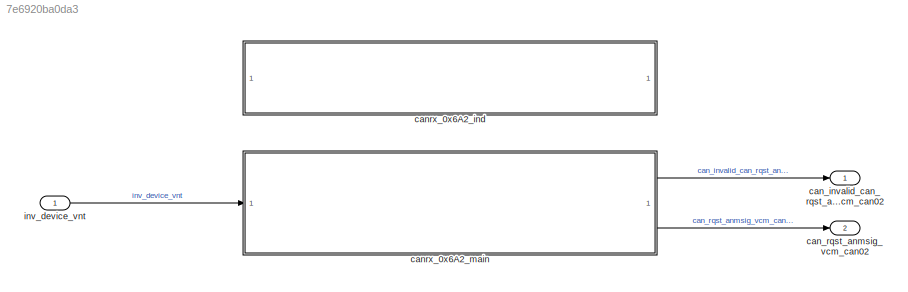
MODEL slx_7e6920ba0da3
KIND model
CONFIG AbsTol = auto
CONFIG EnableMultiTasking = off
CONFIG FixedStep = auto
CONFIG MaxStep = auto
CONFIG MinStep = auto
CONFIG RelTol = 1e-3
CONFIG SampleTimeConstraint = Unconstrained
CONFIG SolverName = VariableStepAuto
CONFIG StartTime = 0.0
CONFIG StopTime = 10.0
BLOCK [Outport] can_invalid_can_rqst_anmsig_vcm_can02
BLOCK [Outport] can_rqst_anmsig_vcm_can02
  Port = 2
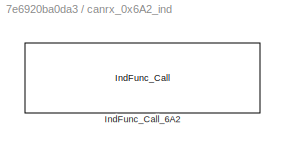
BLOCK [SubSystem] canrx_0x6A2_ind
BLOCK [Reference] canrx_0x6A2_ind/IndFunc_Call_6A2  REF=user_lib/IndFunc_Call
  SourceBlock = user_lib/IndFunc_Call
  SourceProductName = User Defined for IFLayer
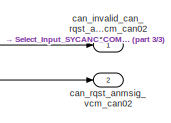
[diagram: canrx_0x6A2_main - part 1/3, right side, full height]
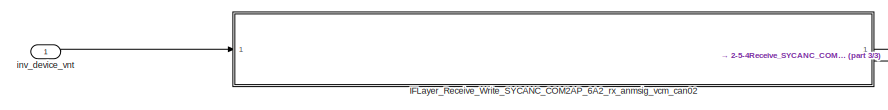
[diagram: canrx_0x6A2_main - part 2/3, middle left region]
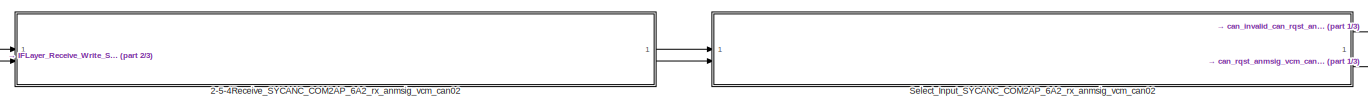
[diagram: canrx_0x6A2_main - part 3/3, central region]
BLOCK [SubSystem] canrx_0x6A2_main
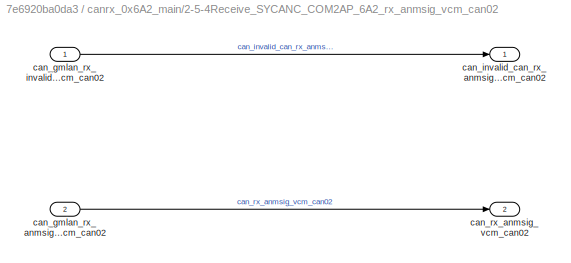
BLOCK [SubSystem] canrx_0x6A2_main/2-5-4Receive_SYCANC_COM2AP_6A2_rx_anmsig_vcm_can02
  RTWSystemCode = Nonreusable function
  TreatAsAtomicUnit = on
BLOCK [Inport] canrx_0x6A2_main/2-5-4Receive_SYCANC_COM2AP_6A2_rx_anmsig_vcm_can02/can_gmlan_rx_anmsig_vcm_can02
  Port = 2
BLOCK [Inport] canrx_0x6A2_main/2-5-4Receive_SYCANC_COM2AP_6A2_rx_anmsig_vcm_can02/can_gmlan_rx_invalid_anmsig_vcm_can02
BLOCK [Outport] canrx_0x6A2_main/2-5-4Receive_SYCANC_COM2AP_6A2_rx_anmsig_vcm_can02/can_invalid_can_rx_anmsig_vcm_can02
BLOCK [Outport] canrx_0x6A2_main/2-5-4Receive_SYCANC_COM2AP_6A2_rx_anmsig_vcm_can02/can_rx_anmsig_vcm_can02
  Port = 2
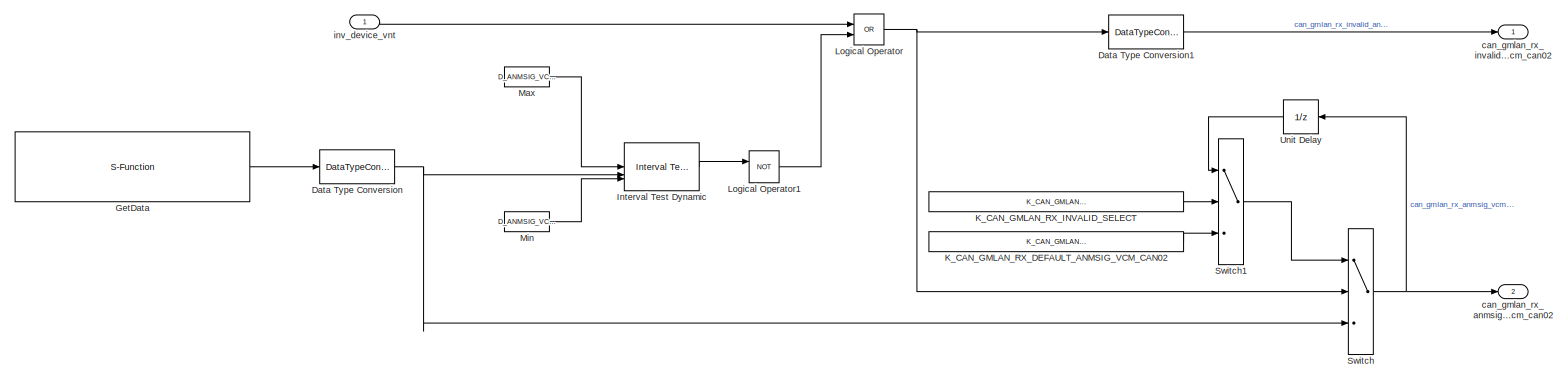
[diagram: canrx_0x6A2_main/IFLayer_Receive_Write_SYCANC_COM2AP_6A2_rx_anmsig_vcm_can02 - part 1/1, most of the canvas]
BLOCK [SubSystem] canrx_0x6A2_main/IFLayer_Receive_Write_SYCANC_COM2AP_6A2_rx_anmsig_vcm_can02
  RTWSystemCode = Nonreusable function
  TreatAsAtomicUnit = on
BLOCK [DataTypeConversion] canrx_0x6A2_main/IFLayer_Receive_Write_SYCANC_COM2AP_6A2_rx_anmsig_vcm_can02/Data Type Conversion
  ConvertRealWorld = Stored Integer (SI)
  OutDataTypeStr = UW
  RndMeth = Floor
  SaturateOnIntegerOverflow = off
BLOCK [DataTypeConversion] canrx_0x6A2_main/IFLayer_Receive_Write_SYCANC_COM2AP_6A2_rx_anmsig_vcm_can02/Data Type Conversion1
  ConvertRealWorld = Stored Integer (SI)
  RndMeth = Floor
  SaturateOnIntegerOverflow = off
BLOCK [S-Function] canrx_0x6A2_main/IFLayer_Receive_Write_SYCANC_COM2AP_6A2_rx_anmsig_vcm_can02/GetData
  EnableBusSupport = off
  FunctionName = GetData
  Parameters = interface,signalType
  SFcnIsStateOwnerBlock = off
  SFunctionDeploymentMode = off
BLOCK [Reference] canrx_0x6A2_main/IFLayer_Receive_Write_SYCANC_COM2AP_6A2_rx_anmsig_vcm_can02/Interval Test Dynamic  REF=simulink/Logic and Bit
Operations/Interval Test
Dynamic
  SourceBlock = simulink/Logic and Bit\nOperations/Interval Test\nDynamic
  SourceType = Interval Test Dynamic
BLOCK [Constant] canrx_0x6A2_main/IFLayer_Receive_Write_SYCANC_COM2AP_6A2_rx_anmsig_vcm_can02/K_CAN_GMLAN_RX_DEFAULT_ANMSIG_VCM_CAN02
  OutDataTypeStr = Inherit: Inherit via back propagation
  Value = K_CAN_GMLAN_RX_DEFAULT_ANMSIG_VCM_CAN02
BLOCK [Constant] canrx_0x6A2_main/IFLayer_Receive_Write_SYCANC_COM2AP_6A2_rx_anmsig_vcm_can02/K_CAN_GMLAN_RX_INVALID_SELECT
  OutDataTypeStr = Inherit: Inherit via back propagation
  Value = K_CAN_GMLAN_RX_INVALID_SELECT
BLOCK [Logic] canrx_0x6A2_main/IFLayer_Receive_Write_SYCANC_COM2AP_6A2_rx_anmsig_vcm_can02/Logical Operator
  AllPortsSameDT = off
  Operator = OR
  OutDataTypeStr = boolean
BLOCK [Logic] canrx_0x6A2_main/IFLayer_Receive_Write_SYCANC_COM2AP_6A2_rx_anmsig_vcm_can02/Logical Operator1
  AllPortsSameDT = off
  Operator = NOT
  OutDataTypeStr = boolean
BLOCK [Constant] canrx_0x6A2_main/IFLayer_Receive_Write_SYCANC_COM2AP_6A2_rx_anmsig_vcm_can02/Max
  OutDataTypeStr = Inherit: Inherit via back propagation
  Value = D_ANMSIG_VCM_CAN02_MAX
BLOCK [Constant] canrx_0x6A2_main/IFLayer_Receive_Write_SYCANC_COM2AP_6A2_rx_anmsig_vcm_can02/Min
  OutDataTypeStr = Inherit: Inherit via back propagation
  Value = D_ANMSIG_VCM_CAN02_MIN
BLOCK [Switch] canrx_0x6A2_main/IFLayer_Receive_Write_SYCANC_COM2AP_6A2_rx_anmsig_vcm_can02/Switch
  Criteria = u2 > Threshold
  InputSameDT = off
  SaturateOnIntegerOverflow = off
BLOCK [Switch] canrx_0x6A2_main/IFLayer_Receive_Write_SYCANC_COM2AP_6A2_rx_anmsig_vcm_can02/Switch1
  Criteria = u2 > Threshold
  InputSameDT = off
  SaturateOnIntegerOverflow = off
BLOCK [UnitDelay] canrx_0x6A2_main/IFLayer_Receive_Write_SYCANC_COM2AP_6A2_rx_anmsig_vcm_can02/Unit Delay
  HasFrameUpgradeWarning = on
  NameLocation = top
  SampleTime = -1
BLOCK [Outport] canrx_0x6A2_main/IFLayer_Receive_Write_SYCANC_COM2AP_6A2_rx_anmsig_vcm_can02/can_gmlan_rx_anmsig_vcm_can02
  Port = 2
BLOCK [Outport] canrx_0x6A2_main/IFLayer_Receive_Write_SYCANC_COM2AP_6A2_rx_anmsig_vcm_can02/can_gmlan_rx_invalid_anmsig_vcm_can02
BLOCK [Inport] canrx_0x6A2_main/IFLayer_Receive_Write_SYCANC_COM2AP_6A2_rx_anmsig_vcm_can02/inv_device_vnt
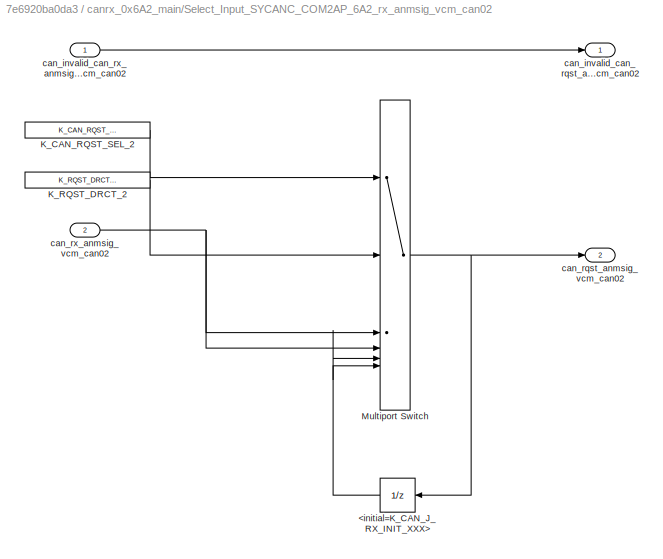
BLOCK [SubSystem] canrx_0x6A2_main/Select_Input_SYCANC_COM2AP_6A2_rx_anmsig_vcm_can02
  RTWSystemCode = Nonreusable function
  TreatAsAtomicUnit = on
BLOCK [UnitDelay] canrx_0x6A2_main/Select_Input_SYCANC_COM2AP_6A2_rx_anmsig_vcm_can02/<initial=K_CAN_J_RX_INIT_XXX>
  HasFrameUpgradeWarning = on
  SampleTime = -1
BLOCK [Constant] canrx_0x6A2_main/Select_Input_SYCANC_COM2AP_6A2_rx_anmsig_vcm_can02/K_CAN_RQST_SEL_2
  Value = K_CAN_RQST_SEL_2
BLOCK [Constant] canrx_0x6A2_main/Select_Input_SYCANC_COM2AP_6A2_rx_anmsig_vcm_can02/K_RQST_DRCT_2
  Value = K_RQST_DRCT_2
BLOCK [MultiPortSwitch] canrx_0x6A2_main/Select_Input_SYCANC_COM2AP_6A2_rx_anmsig_vcm_can02/Multiport Switch
  DataPortOrder = Zero-based contiguous
  InputSameDT = off
  Inputs = 5
  SaturateOnIntegerOverflow = off
  zeroidx = on
BLOCK [Outport] canrx_0x6A2_main/Select_Input_SYCANC_COM2AP_6A2_rx_anmsig_vcm_can02/can_invalid_can_rqst_anmsig_vcm_can02
BLOCK [Inport] canrx_0x6A2_main/Select_Input_SYCANC_COM2AP_6A2_rx_anmsig_vcm_can02/can_invalid_can_rx_anmsig_vcm_can02
BLOCK [Outport] canrx_0x6A2_main/Select_Input_SYCANC_COM2AP_6A2_rx_anmsig_vcm_can02/can_rqst_anmsig_vcm_can02
  Port = 2
BLOCK [Inport] canrx_0x6A2_main/Select_Input_SYCANC_COM2AP_6A2_rx_anmsig_vcm_can02/can_rx_anmsig_vcm_can02
  Port = 2
BLOCK [Outport] canrx_0x6A2_main/can_invalid_can_rqst_anmsig_vcm_can02
BLOCK [Outport] canrx_0x6A2_main/can_rqst_anmsig_vcm_can02
  Port = 2
BLOCK [Inport] canrx_0x6A2_main/inv_device_vnt
BLOCK [Inport] inv_device_vnt
LINE canrx_0x6A2_main/2-5-4Receive_SYCANC_COM2AP_6A2_rx_anmsig_vcm_can02/can_gmlan_rx_anmsig_vcm_can02:1 -> canrx_0x6A2_main/2-5-4Receive_SYCANC_COM2AP_6A2_rx_anmsig_vcm_can02/can_rx_anmsig_vcm_can02:1
LINE canrx_0x6A2_main/2-5-4Receive_SYCANC_COM2AP_6A2_rx_anmsig_vcm_can02/can_gmlan_rx_invalid_anmsig_vcm_can02:1 -> canrx_0x6A2_main/2-5-4Receive_SYCANC_COM2AP_6A2_rx_anmsig_vcm_can02/can_invalid_can_rx_anmsig_vcm_can02:1
LINE canrx_0x6A2_main/2-5-4Receive_SYCANC_COM2AP_6A2_rx_anmsig_vcm_can02:1 -> canrx_0x6A2_main/Select_Input_SYCANC_COM2AP_6A2_rx_anmsig_vcm_can02:1
LINE canrx_0x6A2_main/2-5-4Receive_SYCANC_COM2AP_6A2_rx_anmsig_vcm_can02:2 -> canrx_0x6A2_main/Select_Input_SYCANC_COM2AP_6A2_rx_anmsig_vcm_can02:2
LINE canrx_0x6A2_main/IFLayer_Receive_Write_SYCANC_COM2AP_6A2_rx_anmsig_vcm_can02/Data Type Conversion1:1 -> canrx_0x6A2_main/IFLayer_Receive_Write_SYCANC_COM2AP_6A2_rx_anmsig_vcm_can02/can_gmlan_rx_invalid_anmsig_vcm_can02:1
NET canrx_0x6A2_main/IFLayer_Receive_Write_SYCANC_COM2AP_6A2_rx_anmsig_vcm_can02/Data Type Conversion:1 -> canrx_0x6A2_main/IFLayer_Receive_Write_SYCANC_COM2AP_6A2_rx_anmsig_vcm_can02/Interval Test Dynamic:2, canrx_0x6A2_main/IFLayer_Receive_Write_SYCANC_COM2AP_6A2_rx_anmsig_vcm_can02/Switch:3
LINE canrx_0x6A2_main/IFLayer_Receive_Write_SYCANC_COM2AP_6A2_rx_anmsig_vcm_can02/GetData:1 -> canrx_0x6A2_main/IFLayer_Receive_Write_SYCANC_COM2AP_6A2_rx_anmsig_vcm_can02/Data Type Conversion:1
LINE canrx_0x6A2_main/IFLayer_Receive_Write_SYCANC_COM2AP_6A2_rx_anmsig_vcm_can02/Interval Test Dynamic:1 -> canrx_0x6A2_main/IFLayer_Receive_Write_SYCANC_COM2AP_6A2_rx_anmsig_vcm_can02/Logical Operator1:1
LINE canrx_0x6A2_main/IFLayer_Receive_Write_SYCANC_COM2AP_6A2_rx_anmsig_vcm_can02/K_CAN_GMLAN_RX_DEFAULT_ANMSIG_VCM_CAN02:1 -> canrx_0x6A2_main/IFLayer_Receive_Write_SYCANC_COM2AP_6A2_rx_anmsig_vcm_can02/Switch1:3
LINE canrx_0x6A2_main/IFLayer_Receive_Write_SYCANC_COM2AP_6A2_rx_anmsig_vcm_can02/K_CAN_GMLAN_RX_INVALID_SELECT:1 -> canrx_0x6A2_main/IFLayer_Receive_Write_SYCANC_COM2AP_6A2_rx_anmsig_vcm_can02/Switch1:2
LINE canrx_0x6A2_main/IFLayer_Receive_Write_SYCANC_COM2AP_6A2_rx_anmsig_vcm_can02/Logical Operator1:1 -> canrx_0x6A2_main/IFLayer_Receive_Write_SYCANC_COM2AP_6A2_rx_anmsig_vcm_can02/Logical Operator:2
NET canrx_0x6A2_main/IFLayer_Receive_Write_SYCANC_COM2AP_6A2_rx_anmsig_vcm_can02/Logical Operator:1 -> canrx_0x6A2_main/IFLayer_Receive_Write_SYCANC_COM2AP_6A2_rx_anmsig_vcm_can02/Data Type Conversion1:1, canrx_0x6A2_main/IFLayer_Receive_Write_SYCANC_COM2AP_6A2_rx_anmsig_vcm_can02/Switch:2
LINE canrx_0x6A2_main/IFLayer_Receive_Write_SYCANC_COM2AP_6A2_rx_anmsig_vcm_can02/Max:1 -> canrx_0x6A2_main/IFLayer_Receive_Write_SYCANC_COM2AP_6A2_rx_anmsig_vcm_can02/Interval Test Dynamic:1
LINE canrx_0x6A2_main/IFLayer_Receive_Write_SYCANC_COM2AP_6A2_rx_anmsig_vcm_can02/Min:1 -> canrx_0x6A2_main/IFLayer_Receive_Write_SYCANC_COM2AP_6A2_rx_anmsig_vcm_can02/Interval Test Dynamic:3
LINE canrx_0x6A2_main/IFLayer_Receive_Write_SYCANC_COM2AP_6A2_rx_anmsig_vcm_can02/Switch1:1 -> canrx_0x6A2_main/IFLayer_Receive_Write_SYCANC_COM2AP_6A2_rx_anmsig_vcm_can02/Switch:1
NET canrx_0x6A2_main/IFLayer_Receive_Write_SYCANC_COM2AP_6A2_rx_anmsig_vcm_can02/Switch:1 -> canrx_0x6A2_main/IFLayer_Receive_Write_SYCANC_COM2AP_6A2_rx_anmsig_vcm_can02/Unit Delay:1, canrx_0x6A2_main/IFLayer_Receive_Write_SYCANC_COM2AP_6A2_rx_anmsig_vcm_can02/can_gmlan_rx_anmsig_vcm_can02:1
LINE canrx_0x6A2_main/IFLayer_Receive_Write_SYCANC_COM2AP_6A2_rx_anmsig_vcm_can02/Unit Delay:1 -> canrx_0x6A2_main/IFLayer_Receive_Write_SYCANC_COM2AP_6A2_rx_anmsig_vcm_can02/Switch1:1
LINE canrx_0x6A2_main/IFLayer_Receive_Write_SYCANC_COM2AP_6A2_rx_anmsig_vcm_can02/inv_device_vnt:1 -> canrx_0x6A2_main/IFLayer_Receive_Write_SYCANC_COM2AP_6A2_rx_anmsig_vcm_can02/Logical Operator:1
LINE canrx_0x6A2_main/IFLayer_Receive_Write_SYCANC_COM2AP_6A2_rx_anmsig_vcm_can02:1 -> canrx_0x6A2_main/2-5-4Receive_SYCANC_COM2AP_6A2_rx_anmsig_vcm_can02:1
LINE canrx_0x6A2_main/IFLayer_Receive_Write_SYCANC_COM2AP_6A2_rx_anmsig_vcm_can02:2 -> canrx_0x6A2_main/2-5-4Receive_SYCANC_COM2AP_6A2_rx_anmsig_vcm_can02:2
NET canrx_0x6A2_main/Select_Input_SYCANC_COM2AP_6A2_rx_anmsig_vcm_can02/<initial=K_CAN_J_RX_INIT_XXX>:1 -> canrx_0x6A2_main/Select_Input_SYCANC_COM2AP_6A2_rx_anmsig_vcm_can02/Multiport Switch:5, canrx_0x6A2_main/Select_Input_SYCANC_COM2AP_6A2_rx_anmsig_vcm_can02/Multiport Switch:6
LINE canrx_0x6A2_main/Select_Input_SYCANC_COM2AP_6A2_rx_anmsig_vcm_can02/K_CAN_RQST_SEL_2:1 -> canrx_0x6A2_main/Select_Input_SYCANC_COM2AP_6A2_rx_anmsig_vcm_can02/Multiport Switch:1
LINE canrx_0x6A2_main/Select_Input_SYCANC_COM2AP_6A2_rx_anmsig_vcm_can02/K_RQST_DRCT_2:1 -> canrx_0x6A2_main/Select_Input_SYCANC_COM2AP_6A2_rx_anmsig_vcm_can02/Multiport Switch:2
NET canrx_0x6A2_main/Select_Input_SYCANC_COM2AP_6A2_rx_anmsig_vcm_can02/Multiport Switch:1 -> canrx_0x6A2_main/Select_Input_SYCANC_COM2AP_6A2_rx_anmsig_vcm_can02/<initial=K_CAN_J_RX_INIT_XXX>:1, canrx_0x6A2_main/Select_Input_SYCANC_COM2AP_6A2_rx_anmsig_vcm_can02/can_rqst_anmsig_vcm_can02:1
LINE canrx_0x6A2_main/Select_Input_SYCANC_COM2AP_6A2_rx_anmsig_vcm_can02/can_invalid_can_rx_anmsig_vcm_can02:1 -> canrx_0x6A2_main/Select_Input_SYCANC_COM2AP_6A2_rx_anmsig_vcm_can02/can_invalid_can_rqst_anmsig_vcm_can02:1
NET canrx_0x6A2_main/Select_Input_SYCANC_COM2AP_6A2_rx_anmsig_vcm_can02/can_rx_anmsig_vcm_can02:1 -> canrx_0x6A2_main/Select_Input_SYCANC_COM2AP_6A2_rx_anmsig_vcm_can02/Multiport Switch:3, canrx_0x6A2_main/Select_Input_SYCANC_COM2AP_6A2_rx_anmsig_vcm_can02/Multiport Switch:4
LINE canrx_0x6A2_main/Select_Input_SYCANC_COM2AP_6A2_rx_anmsig_vcm_can02:1 -> canrx_0x6A2_main/can_invalid_can_rqst_anmsig_vcm_can02:1
LINE canrx_0x6A2_main/Select_Input_SYCANC_COM2AP_6A2_rx_anmsig_vcm_can02:2 -> canrx_0x6A2_main/can_rqst_anmsig_vcm_can02:1
LINE canrx_0x6A2_main/inv_device_vnt:1 -> canrx_0x6A2_main/IFLayer_Receive_Write_SYCANC_COM2AP_6A2_rx_anmsig_vcm_can02:1
LINE canrx_0x6A2_main:1 -> can_invalid_can_rqst_anmsig_vcm_can02:1
LINE canrx_0x6A2_main:2 -> can_rqst_anmsig_vcm_can02:1
LINE inv_device_vnt:1 -> canrx_0x6A2_main:1
note: NET lines group one-source signal fan-out (src -> all destinations, sorted); 1:1 wires keep LINE
